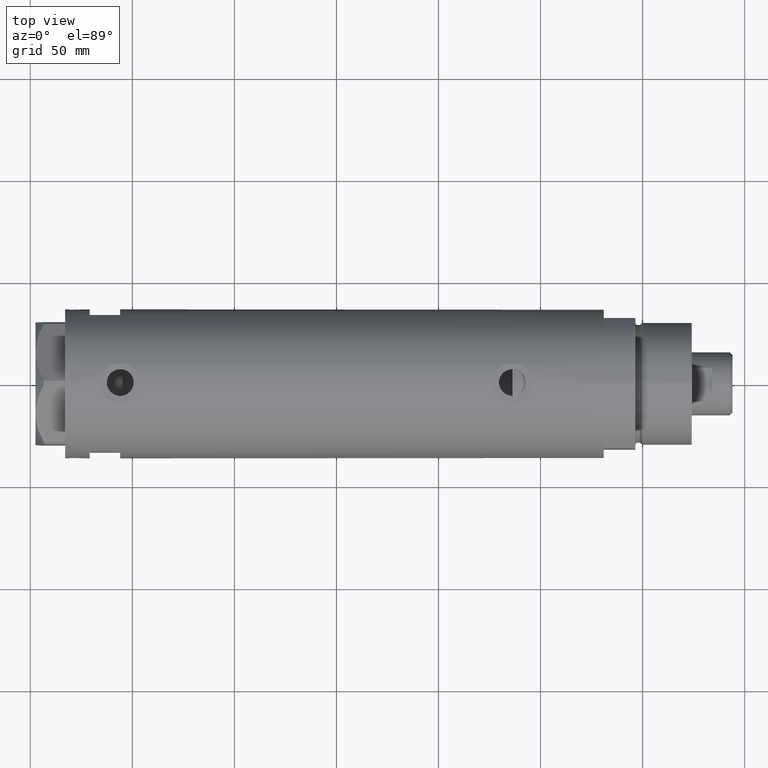
[diagram: clean part render]
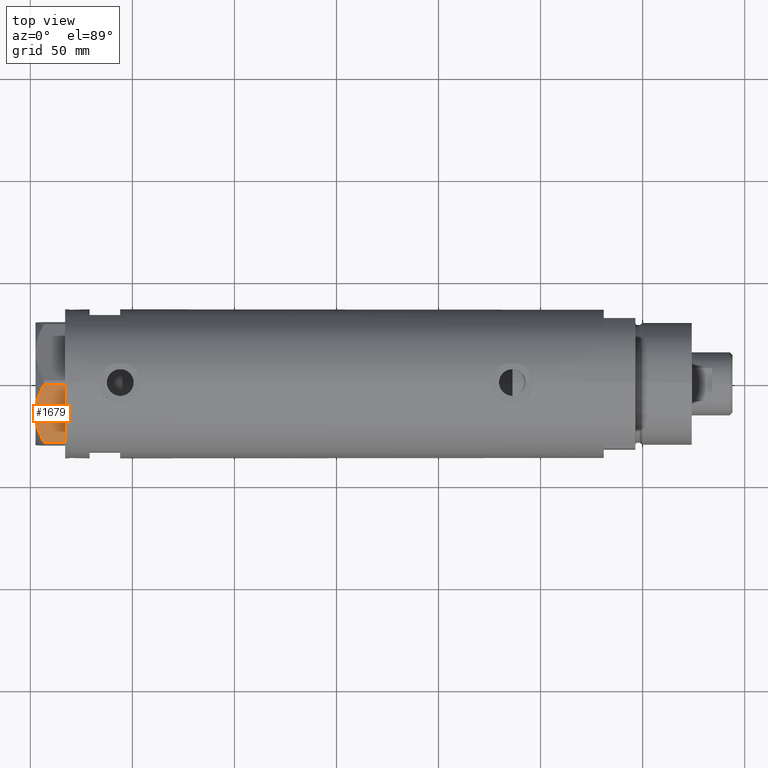
[diagram: same view with one face highlighted and labeled with its STEP entity id]
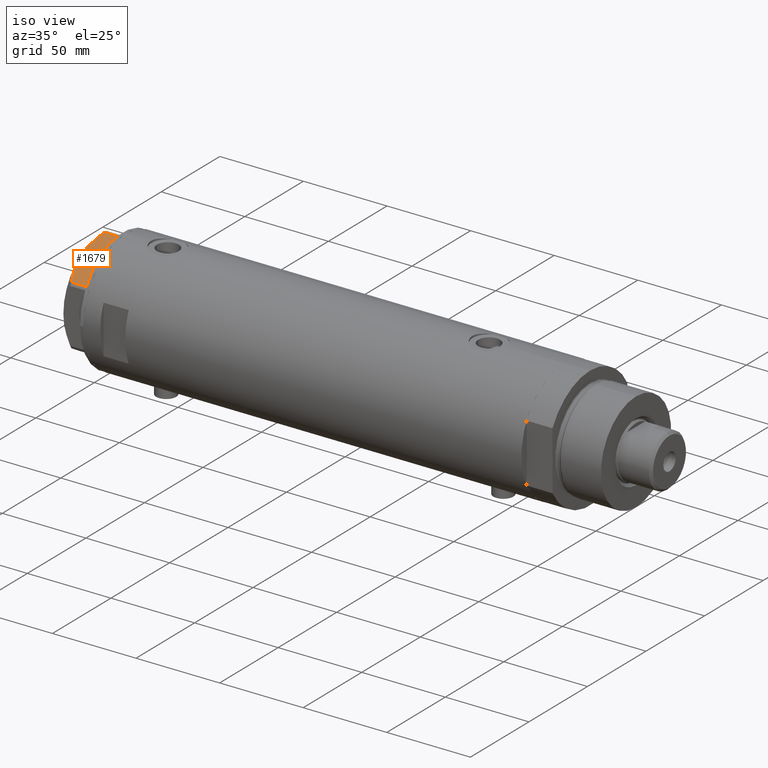
[diagram: same view with one face highlighted and labeled with its STEP entity id]
A machine part, top view. The second image highlights one B-rep face of the part: STEP entity #1679.
A second angle (iso view) of the same face is appended — the face is thin or edge-on in the first view.
In plain terms, the highlighted planar face has unit normal (-0, 0.5, -0.866).
Its self-contained STEP definition (entity closure, byte-faithful):
#3 = CARTESIAN_POINT ( 'NONE',  ( -6.639151835533460222, -30.80790005194150183, 12.99122625442232604 ) ) ;
#25 = CARTESIAN_POINT ( 'NONE',  ( -4.902385341342997194, -31.81062265488187535, 12.31959434659020758 ) ) ;
#318 = CARTESIAN_POINT ( 'NONE',  ( -17.45962150578836258, -24.56069897506165489, 14.37423503257922164 ) ) ;
#328 = B_SPLINE_CURVE_WITH_KNOTS ( 'NONE', 3,
 ( #1461, #3721, #737, #1149, #3, #2569, #25, #3766, #448, #4768 ),
 .UNSPECIFIED., .F., .F.,
 ( 4, 2, 2, 2, 4 ),
 ( 0.01795453117522812295, 0.02625795893839792672, 0.02833381587919037853, 0.03040967281998283034, 0.03456138670156772702 ),
 .UNSPECIFIED. ) ;
#401 = DIRECTION ( 'NONE',  ( -0.000000000000000000, 0.000000000000000000, -1.000000000000000000 ) ) ;
#448 = CARTESIAN_POINT ( 'NONE',  ( -2.073315687465953960, -33.44398678110400169, 11.01056656432686509 ) ) ;
#554 = LINE ( 'NONE', #2856, #1131 ) ;
#660 = EDGE_CURVE ( 'NONE', #1246, #1479, #4061, .T. ) ;
#675 = CARTESIAN_POINT ( 'NONE',  ( -19.88494945387373747, -23.16043523136143278, 14.00566141361761119 ) ) ;
#737 = CARTESIAN_POINT ( 'NONE',  ( -10.17780078270465616, -28.76486012972462447, 14.10092492974135148 ) ) ;
#909 = DIRECTION ( 'NONE',  ( 0.000000000000000000, 0.000000000000000000, 1.000000000000000000 ) ) ;
#1032 = CARTESIAN_POINT ( 'NONE',  ( -24.56959650245797988, -20.45575299680293568, 12.63511531451932512 ) ) ;
#1131 = VECTOR ( 'NONE', #1636, 1000.000000000000227 ) ;
#1149 = CARTESIAN_POINT ( 'NONE',  ( -7.227334865371702222, -30.46831242133162476, 13.19311392138147276 ) ) ;
#1246 = VERTEX_POINT ( 'NONE', #3331 ) ;
#1314 = CARTESIAN_POINT ( 'NONE',  ( -29.03005154776141339, -17.88050807568878042, 0.000000000000000000 ) ) ;
#1361 = VECTOR ( 'NONE', #401, 1000.000000000000000 ) ;
#1404 = CARTESIAN_POINT ( 'NONE',  ( -30.00000000000000000, -17.32050807568877460, 14.50000000000000000 ) ) ;
#1461 = CARTESIAN_POINT ( 'NONE',  ( -14.99999999999999645, -25.98076211353316367, 14.50000000000000000 ) ) ;
#1479 = VERTEX_POINT ( 'NONE', #1314 ) ;
#1509 = CARTESIAN_POINT ( 'NONE',  ( -0.9699484522385841689, -34.08101615137752560, 10.40518423703605322 ) ) ;
#1522 = VERTEX_POINT ( 'NONE', #4604 ) ;
#1636 = DIRECTION ( 'NONE',  ( 0.8660254037844387076, -0.4999999999999997780, 0.000000000000000000 ) ) ;
#1673 = EDGE_LOOP ( 'NONE', ( #3685, #3364, #1774, #3876, #3461 ) ) ;
#1679 = ADVANCED_FACE ( 'NONE', ( #1845 ), #1769, .F. ) ;
#1701 = CARTESIAN_POINT ( 'NONE',  ( -18.07068105770097688, -24.20790357827401351, 14.29910535634586921 ) ) ;
#1769 = PLANE ( 'NONE',  #2992 ) ;
#1774 = ORIENTED_EDGE ( 'NONE', *, *, #2873, .T. ) ;
#1845 = FACE_OUTER_BOUND ( 'NONE', #1673, .T. ) ;
#2398 = VERTEX_POINT ( 'NONE', #1509 ) ;
#2569 = CARTESIAN_POINT ( 'NONE',  ( -5.477433827011700451, -31.47861825688396564, 12.55468001512206300 ) ) ;
#2678 = DIRECTION ( 'NONE',  ( 0.4999999999999998335, 0.8660254037844388186, -0.000000000000000000 ) ) ;
#2817 = CARTESIAN_POINT ( 'NONE',  ( -15.61187731150016411, -25.62749458302751648, 14.50000000000000355 ) ) ;
#2856 = CARTESIAN_POINT ( 'NONE',  ( -30.00000000000000000, -17.32050807568877460, 0.000000000000000000 ) ) ;
#2873 = EDGE_CURVE ( 'NONE', #1479, #1522, #554, .T. ) ;
#2922 = VECTOR ( 'NONE', #909, 1000.000000000000000 ) ;
#2988 = CARTESIAN_POINT ( 'NONE',  ( -29.03005154776141339, -17.88050807568878042, 14.50000000000000000 ) ) ;
#2992 = AXIS2_PLACEMENT_3D ( 'NONE', #1404, #2678, #3032 ) ;
#3032 = DIRECTION ( 'NONE',  ( -0.8660254037844387076, 0.4999999999999997780, 0.000000000000000000 ) ) ;
#3222 = CARTESIAN_POINT ( 'NONE',  ( -26.82462797925472842, -19.15380996664326219, 11.61522964162834626 ) ) ;
#3255 = CARTESIAN_POINT ( 'NONE',  ( -29.03005154776157326, -17.88050807568868805, 10.40518423703595374 ) ) ;
#3331 = CARTESIAN_POINT ( 'NONE',  ( -29.03005154776157326, -17.88050807568868805, 10.40518423703595374 ) ) ;
#3364 = ORIENTED_EDGE ( 'NONE', *, *, #660, .T. ) ;
#3461 = ORIENTED_EDGE ( 'NONE', *, *, #4705, .F. ) ;
#3685 = ORIENTED_EDGE ( 'NONE', *, *, #4102, .F. ) ;
#3721 = CARTESIAN_POINT ( 'NONE',  ( -12.56968319190124639, -27.38390617690504669, 14.50000000000000711 ) ) ;
#3733 = B_SPLINE_CURVE_WITH_KNOTS ( 'NONE', 3,
 ( #3255, #3222, #1032, #3993, #675, #1701, #318, #3949, #2817, #4733 ),
 .UNSPECIFIED., .F., .F.,
 ( 4, 2, 2, 2, 4 ),
 ( 0.001230196178133391958, 0.009592363676680756152, 0.01377344742595443955, 0.01586398930059127951, 0.01795453117522812295 ),
 .UNSPECIFIED. ) ;
#3766 = CARTESIAN_POINT ( 'NONE',  ( -3.192653970405496811, -32.79773652213460622, 11.56973717813738745 ) ) ;
#3872 = CARTESIAN_POINT ( 'NONE',  ( -0.9699484522385850571, -34.08101615137752560, 14.50000000000000000 ) ) ;
#3876 = ORIENTED_EDGE ( 'NONE', *, *, #4046, .T. ) ;
#3949 = CARTESIAN_POINT ( 'NONE',  ( -16.22616138060132940, -25.27283751037305137, 14.47500996539161910 ) ) ;
#3993 = CARTESIAN_POINT ( 'NONE',  ( -21.07077273125423744, -22.47579984295447630, 13.71922620632299150 ) ) ;
#4046 = EDGE_CURVE ( 'NONE', #1522, #2398, #4237, .T. ) ;
#4061 = LINE ( 'NONE', #2988, #1361 ) ;
#4102 = EDGE_CURVE ( 'NONE', #1246, #4430, #3733, .T. ) ;
#4237 = LINE ( 'NONE', #3872, #2922 ) ;
#4258 = CARTESIAN_POINT ( 'NONE',  ( -14.99999999999999645, -25.98076211353316367, 14.50000000000000000 ) ) ;
#4430 = VERTEX_POINT ( 'NONE', #4258 ) ;
#4604 = CARTESIAN_POINT ( 'NONE',  ( -0.9699484522385886098, -34.08101615137752560, 0.000000000000000000 ) ) ;
#4705 = EDGE_CURVE ( 'NONE', #4430, #2398, #328, .T. ) ;
#4733 = CARTESIAN_POINT ( 'NONE',  ( -14.99999999999999645, -25.98076211353316367, 14.50000000000000000 ) ) ;
#4768 = CARTESIAN_POINT ( 'NONE',  ( -0.9699484522385841689, -34.08101615137752560, 10.40518423703605322 ) ) ;